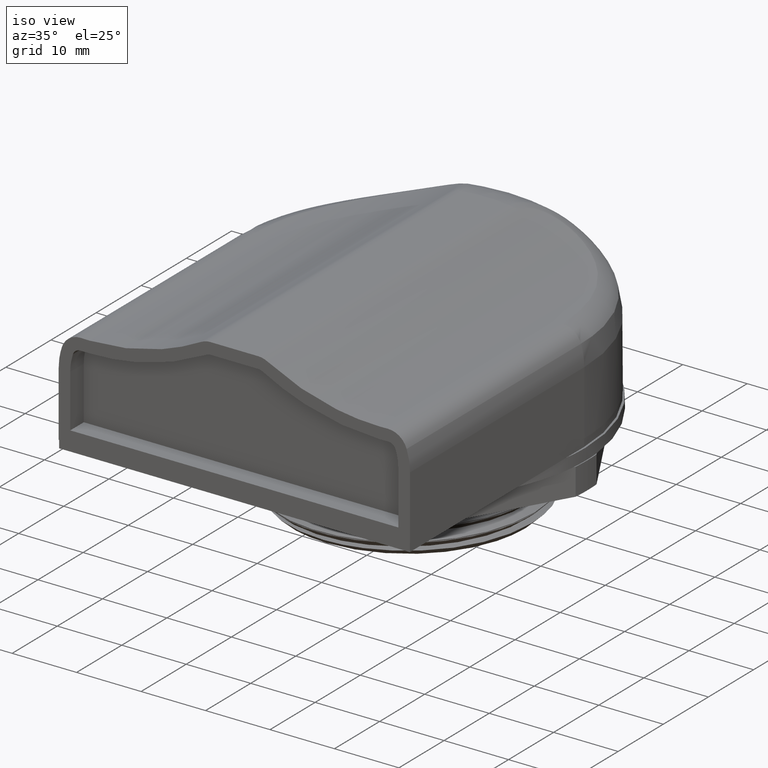
[diagram: clean part render]
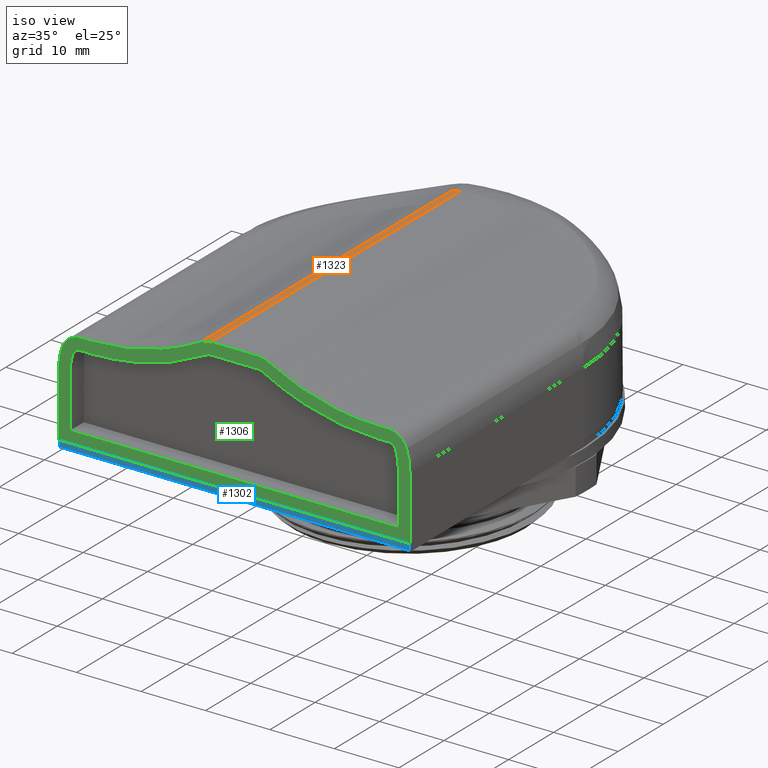
[diagram: same view with three faces highlighted in distinct colors, each labeled with its STEP entity id]
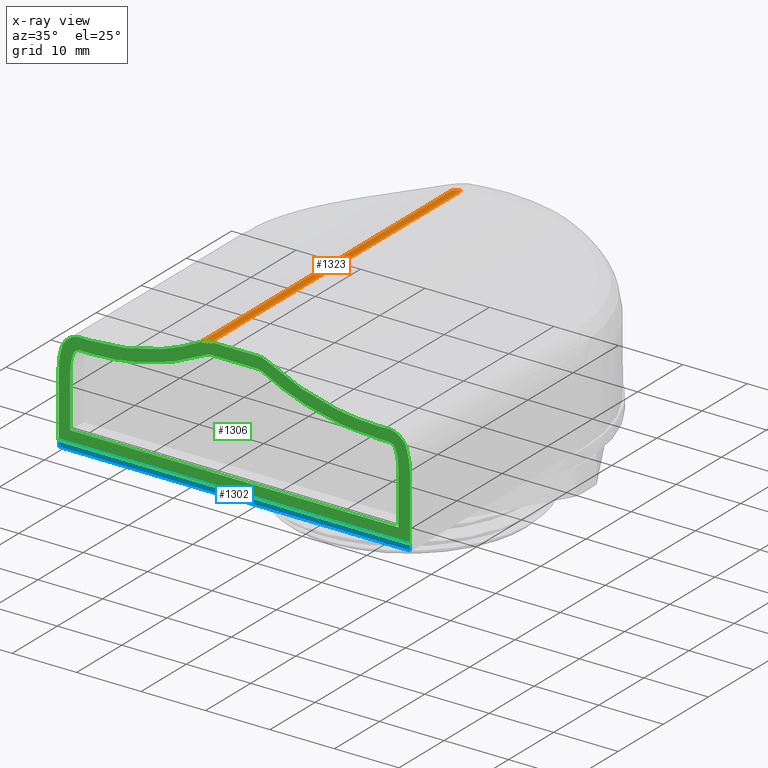
[diagram: x-ray of the same camera — body ghosted, the three highlighted faces saturated]
A machine part, iso view with three faces highlighted in distinct colors.
The next image is the same camera in x-ray (body ghosted, the three faces saturated) — at least one of them is partly hidden behind the body in this view.
Their STEP definitions:

[orange] entity #1323 — the highlighted cylindrical surface (edge-blend (fillet) strip) has radius 3 mm, axis along (-0, -1, -0).
#691 = VERTEX_POINT ( 'NONE', #3015 ) ;
#701 = VERTEX_POINT ( 'NONE', #3028 ) ;
#725 = VERTEX_POINT ( 'NONE', #3012 ) ;
#774 = VERTEX_POINT ( 'NONE', #3093 ) ;
#901 = EDGE_CURVE ( 'NONE', #691, #701, #4510, .T. ) ;
#915 = EDGE_CURVE ( 'NONE', #774, #701, #12926, .T. ) ;
#1323 = ADVANCED_FACE ( 'NONE', ( #6863 ), #6849, .T. ) ;
#1457 = EDGE_CURVE ( 'NONE', #725, #691, #16097, .T. ) ;
#1625 = EDGE_CURVE ( 'NONE', #725, #774, #9061, .T. ) ;
#3012 = CARTESIAN_POINT ( 'NONE',  ( -9.727194611496791800, 22.65582705142065500, 34.62921381726673100 ) ) ;
#3015 = CARTESIAN_POINT ( 'NONE',  ( -8.282468096514207900, 22.65582705142065800, 35.00000000000000000 ) ) ;
#3028 = CARTESIAN_POINT ( 'NONE',  ( -8.282468096514207900, -32.81970099667773200, 35.00000000000000000 ) ) ;
#3093 = CARTESIAN_POINT ( 'NONE',  ( -9.727194611496795300, -32.81970099667773200, 34.62921381726673100 ) ) ;
#4510 = LINE ( 'NONE', #4556, #5400 ) ;
#4524 = DIRECTION ( 'NONE',  ( 0.0000000000000000000, -1.000000000000000000, -0.0000000000000000000 ) ) ;
#4556 = CARTESIAN_POINT ( 'NONE',  ( -8.282468096514207900, 9.930299003322279100, 35.00000000000000000 ) ) ;
#4622 = CARTESIAN_POINT ( 'NONE',  ( -9.286843787195946800, -32.81970099667773200, 34.87118216064902000 ) ) ;
#4627 = CARTESIAN_POINT ( 'NONE',  ( -8.282468096514207900, -32.81970099667773200, 35.00000000000000000 ) ) ;
#4637 = CARTESIAN_POINT ( 'NONE',  ( -9.727194611496795300, -32.81970099667773200, 34.62921381726673100 ) ) ;
#4650 = CARTESIAN_POINT ( 'NONE',  ( -8.784919614236670800, -32.81970099667773200, 35.00000000000000000 ) ) ;
#5400 = VECTOR ( 'NONE', #4524, 1000.000000000000000 ) ;
#6822 = CARTESIAN_POINT ( 'NONE',  ( -8.282468096514207900, 37.18029900332227600, 32.00000000000000000 ) ) ;
#6828 = DIRECTION ( 'NONE',  ( -0.0000000000000000000, -1.000000000000000000, -0.0000000000000000000 ) ) ;
#6849 = CYLINDRICAL_SURFACE ( 'NONE', #15933, 2.999999999999999100 ) ;
#6853 = DIRECTION ( 'NONE',  ( 0.0000000000000000000, 0.0000000000000000000, -1.000000000000000000 ) ) ;
#6863 = FACE_OUTER_BOUND ( 'NONE', #13789, .T. ) ;
#7831 = DIRECTION ( 'NONE',  ( 0.0000000000000000000, 1.000000000000000000, 0.0000000000000000000 ) ) ;
#7833 = DIRECTION ( 'NONE',  ( 0.0000000000000000000, 0.0000000000000000000, 1.000000000000000000 ) ) ;
#7852 = CARTESIAN_POINT ( 'NONE',  ( -8.282468096514206100, 22.65582705142065800, 32.00000000000000000 ) ) ;
#9061 = LINE ( 'NONE', #9077, #15467 ) ;
#9076 = DIRECTION ( 'NONE',  ( -0.0000000000000000000, -1.000000000000000000, -0.0000000000000000000 ) ) ;
#9077 = CARTESIAN_POINT ( 'NONE',  ( -9.727194611496795300, 37.18029900332227600, 34.62921381726673100 ) ) ;
#12926 = B_SPLINE_CURVE_WITH_KNOTS ( 'NONE', 3,
 ( #4637, #4622, #4650, #4627 ),
 .UNSPECIFIED., .F., .F.,
 ( 4, 4 ),
 ( 0.0000000000000000000, 1.000000000000000000 ),
 .UNSPECIFIED. ) ;
#13789 = EDGE_LOOP ( 'NONE', ( #14153, #14144, #14172, #14157 ) ) ;
#14144 = ORIENTED_EDGE ( 'NONE', *, *, #901, .F. ) ;
#14153 = ORIENTED_EDGE ( 'NONE', *, *, #915, .T. ) ;
#14157 = ORIENTED_EDGE ( 'NONE', *, *, #1625, .T. ) ;
#14172 = ORIENTED_EDGE ( 'NONE', *, *, #1457, .F. ) ;
#15467 = VECTOR ( 'NONE', #9076, 1000.000000000000000 ) ;
#15933 = AXIS2_PLACEMENT_3D ( 'NONE', #6822, #6828, #6853 ) ;
#16090 = AXIS2_PLACEMENT_3D ( 'NONE', #7852, #7831, #7833 ) ;
#16097 = CIRCLE ( 'NONE', #16090, 3.000000000000002700 ) ;

[blue] entity #1302 — the highlighted planar face has unit normal (0, 1, 0).
#652 = VERTEX_POINT ( 'NONE', #2966 ) ;
#653 = VERTEX_POINT ( 'NONE', #2952 ) ;
#689 = VERTEX_POINT ( 'NONE', #3031 ) ;
#710 = VERTEX_POINT ( 'NONE', #2988 ) ;
#902 = EDGE_CURVE ( 'NONE', #689, #652, #12913, .T. ) ;
#907 = EDGE_CURVE ( 'NONE', #689, #653, #12897, .T. ) ;
#927 = EDGE_CURVE ( 'NONE', #710, #653, #12971, .T. ) ;
#1302 = ADVANCED_FACE ( 'NONE', ( #6698 ), #6702, .F. ) ;
#1446 = EDGE_CURVE ( 'NONE', #652, #710, #7747, .T. ) ;
#2952 = CARTESIAN_POINT ( 'NONE',  ( 22.63261302966720800, -32.77120099667774200, 13.99999999999999800 ) ) ;
#2966 = CARTESIAN_POINT ( 'NONE',  ( -31.76988697033279900, -32.77070099667773200, 15.00000000000000000 ) ) ;
#2988 = CARTESIAN_POINT ( 'NONE',  ( 22.63211302966721000, -32.77070099667773900, 15.00000000000000000 ) ) ;
#3031 = CARTESIAN_POINT ( 'NONE',  ( -31.77038697033281200, -32.77120099667773400, 13.99999999999999800 ) ) ;
#4517 = CARTESIAN_POINT ( 'NONE',  ( -31.76988697033280600, -32.77070099667773200, 14.66666666666666600 ) ) ;
#4522 = CARTESIAN_POINT ( 'NONE',  ( -31.77038697033281200, -32.77120099667773400, 13.99999999999999800 ) ) ;
#4528 = CARTESIAN_POINT ( 'NONE',  ( -31.76988697033280600, -32.77070099667773200, 14.33333333333333200 ) ) ;
#4554 = CARTESIAN_POINT ( 'NONE',  ( -31.76988697033279900, -32.77070099667773200, 15.00000000000000000 ) ) ;
#4588 = CARTESIAN_POINT ( 'NONE',  ( 22.63261302966720800, -32.77120099667774200, 13.99999999999999800 ) ) ;
#4592 = CARTESIAN_POINT ( 'NONE',  ( -31.77038697033281200, -32.77120099667773400, 13.99999999999999800 ) ) ;
#4593 = CARTESIAN_POINT ( 'NONE',  ( 4.498279696333869800, -32.77070099667773200, 13.99999999999999800 ) ) ;
#4609 = CARTESIAN_POINT ( 'NONE',  ( -13.63605363699947200, -32.77070099667773200, 13.99999999999999800 ) ) ;
#4695 = CARTESIAN_POINT ( 'NONE',  ( 22.63211302966721000, -32.77070099667773900, 15.00000000000000000 ) ) ;
#4713 = CARTESIAN_POINT ( 'NONE',  ( 22.63261302966720800, -32.77120099667774200, 13.99999999999999800 ) ) ;
#4716 = CARTESIAN_POINT ( 'NONE',  ( 22.63211302966721000, -32.77070099667773200, 14.33333333333333200 ) ) ;
#4719 = CARTESIAN_POINT ( 'NONE',  ( 22.63211302966721000, -32.77070099667773200, 14.66666666666666600 ) ) ;
#6677 = DIRECTION ( 'NONE',  ( 0.0000000000000000000, 1.000000000000000000, 0.0000000000000000000 ) ) ;
#6684 = CARTESIAN_POINT ( 'NONE',  ( 22.68111302966720900, -32.77070099667773200, 13.99999999999999800 ) ) ;
#6686 = DIRECTION ( 'NONE',  ( 0.0000000000000000000, -0.0000000000000000000, 1.000000000000000000 ) ) ;
#6698 = FACE_OUTER_BOUND ( 'NONE', #13768, .T. ) ;
#6702 = PLANE ( 'NONE',  #15924 ) ;
#7709 = DIRECTION ( 'NONE',  ( 1.000000000000000000, 0.0000000000000000000, -0.0000000000000000000 ) ) ;
#7747 = LINE ( 'NONE', #7753, #16042 ) ;
#7753 = CARTESIAN_POINT ( 'NONE',  ( 22.68111302966720900, -32.77070099667773200, 15.00000000000000000 ) ) ;
#12897 = B_SPLINE_CURVE_WITH_KNOTS ( 'NONE', 3,
 ( #4592, #4609, #4593, #4588 ),
 .UNSPECIFIED., .F., .F.,
 ( 4, 4 ),
 ( 0.0000000000000000000, 1.000000000000000000 ),
 .UNSPECIFIED. ) ;
#12913 = B_SPLINE_CURVE_WITH_KNOTS ( 'NONE', 3,
 ( #4522, #4528, #4517, #4554 ),
 .UNSPECIFIED., .F., .F.,
 ( 4, 4 ),
 ( 0.0000000000000000000, 1.000000000000000000 ),
 .UNSPECIFIED. ) ;
#12971 = B_SPLINE_CURVE_WITH_KNOTS ( 'NONE', 3,
 ( #4695, #4719, #4716, #4713 ),
 .UNSPECIFIED., .F., .F.,
 ( 4, 4 ),
 ( 0.0000000000000000000, 1.000000000000000000 ),
 .UNSPECIFIED. ) ;
#13768 = EDGE_LOOP ( 'NONE', ( #14470, #14473, #14490, #14481 ) ) ;
#14470 = ORIENTED_EDGE ( 'NONE', *, *, #902, .F. ) ;
#14473 = ORIENTED_EDGE ( 'NONE', *, *, #907, .T. ) ;
#14481 = ORIENTED_EDGE ( 'NONE', *, *, #1446, .F. ) ;
#14490 = ORIENTED_EDGE ( 'NONE', *, *, #927, .F. ) ;
#15924 = AXIS2_PLACEMENT_3D ( 'NONE', #6684, #6677, #6686 ) ;
#16042 = VECTOR ( 'NONE', #7709, 1000.000000000000000 ) ;

[green] entity #1306 — the highlighted planar face has unit normal (0, 1, 0).
#115 = B_SPLINE_CURVE_WITH_KNOTS ( 'NONE', 3,
 ( #9111, #9112, #9176, #9193 ),
 .UNSPECIFIED., .F., .F.,
 ( 4, 4 ),
 ( 0.0000000000000000000, 1.000000000000000000 ),
 .UNSPECIFIED. ) ;
#623 = VERTEX_POINT ( 'NONE', #2922 ) ;
#624 = VERTEX_POINT ( 'NONE', #2924 ) ;
#633 = VERTEX_POINT ( 'NONE', #2910 ) ;
#670 = VERTEX_POINT ( 'NONE', #2954 ) ;
#674 = VERTEX_POINT ( 'NONE', #2921 ) ;
#680 = VERTEX_POINT ( 'NONE', #2941 ) ;
#681 = VERTEX_POINT ( 'NONE', #2960 ) ;
#682 = VERTEX_POINT ( 'NONE', #2967 ) ;
#685 = VERTEX_POINT ( 'NONE', #2968 ) ;
#692 = VERTEX_POINT ( 'NONE', #2981 ) ;
#694 = VERTEX_POINT ( 'NONE', #2992 ) ;
#697 = VERTEX_POINT ( 'NONE', #2983 ) ;
#699 = VERTEX_POINT ( 'NONE', #2979 ) ;
#700 = VERTEX_POINT ( 'NONE', #3025 ) ;
#701 = VERTEX_POINT ( 'NONE', #3028 ) ;
#703 = VERTEX_POINT ( 'NONE', #2995 ) ;
#708 = VERTEX_POINT ( 'NONE', #3022 ) ;
#709 = VERTEX_POINT ( 'NONE', #3009 ) ;
#714 = VERTEX_POINT ( 'NONE', #3030 ) ;
#715 = VERTEX_POINT ( 'NONE', #2996 ) ;
#718 = VERTEX_POINT ( 'NONE', #3026 ) ;
#720 = VERTEX_POINT ( 'NONE', #2998 ) ;
#722 = VERTEX_POINT ( 'NONE', #3011 ) ;
#732 = VERTEX_POINT ( 'NONE', #3003 ) ;
#733 = VERTEX_POINT ( 'NONE', #2987 ) ;
#750 = VERTEX_POINT ( 'NONE', #3007 ) ;
#768 = VERTEX_POINT ( 'NONE', #3073 ) ;
#774 = VERTEX_POINT ( 'NONE', #3093 ) ;
#781 = VERTEX_POINT ( 'NONE', #3056 ) ;
#900 = EDGE_CURVE ( 'NONE', #701, #685, #4544, .T. ) ;
#911 = EDGE_CURVE ( 'NONE', #709, #699, #4574, .T. ) ;
#915 = EDGE_CURVE ( 'NONE', #774, #701, #12926, .T. ) ;
#916 = EDGE_CURVE ( 'NONE', #633, #750, #13085, .T. ) ;
#1306 = ADVANCED_FACE ( 'NONE', ( #6724, #6716 ), #6748, .F. ) ;
#1422 = EDGE_CURVE ( 'NONE', #694, #718, #13010, .T. ) ;
#1429 = EDGE_CURVE ( 'NONE', #685, #682, #13089, .T. ) ;
#1430 = EDGE_CURVE ( 'NONE', #700, #768, #13021, .T. ) ;
#1431 = EDGE_CURVE ( 'NONE', #720, #697, #12992, .T. ) ;
#1433 = EDGE_CURVE ( 'NONE', #623, #714, #13042, .T. ) ;
#1434 = EDGE_CURVE ( 'NONE', #732, #708, #13095, .T. ) ;
#1435 = EDGE_CURVE ( 'NONE', #720, #681, #6546, .T. ) ;
#1439 = EDGE_CURVE ( 'NONE', #680, #624, #13097, .T. ) ;
#1441 = EDGE_CURVE ( 'NONE', #623, #674, #12969, .T. ) ;
#1449 = EDGE_CURVE ( 'NONE', #694, #703, #12989, .T. ) ;
#1454 = EDGE_CURVE ( 'NONE', #633, #703, #7870, .T. ) ;
#1456 = EDGE_CURVE ( 'NONE', #674, #709, #7805, .T. ) ;
#1458 = EDGE_CURVE ( 'NONE', #699, #680, #7829, .T. ) ;
#1465 = EDGE_CURVE ( 'NONE', #733, #670, #13013, .T. ) ;
#1467 = EDGE_CURVE ( 'NONE', #700, #624, #13018, .T. ) ;
#1471 = EDGE_CURVE ( 'NONE', #722, #692, #8217, .T. ) ;
#1476 = EDGE_CURVE ( 'NONE', #722, #681, #8207, .T. ) ;
#1478 = EDGE_CURVE ( 'NONE', #708, #692, #13103, .T. ) ;
#1483 = EDGE_CURVE ( 'NONE', #715, #670, #13104, .T. ) ;
#1484 = EDGE_CURVE ( 'NONE', #682, #781, #13106, .T. ) ;
#1587 = EDGE_CURVE ( 'NONE', #732, #781, #13148, .T. ) ;
#1590 = EDGE_CURVE ( 'NONE', #733, #774, #13253, .T. ) ;
#1598 = EDGE_CURVE ( 'NONE', #768, #750, #13229, .T. ) ;
#1619 = EDGE_CURVE ( 'NONE', #697, #715, #13123, .T. ) ;
#1637 = EDGE_CURVE ( 'NONE', #718, #714, #115, .T. ) ;
#2910 = CARTESIAN_POINT ( 'NONE',  ( -0.8553058441513883300, -32.81970099667773200, 33.20000000000001000 ) ) ;
#2921 = CARTESIAN_POINT ( 'NONE',  ( -30.01888697033280100, -32.81970099667773200, 25.00000000000000000 ) ) ;
#2922 = CARTESIAN_POINT ( 'NONE',  ( -29.60015785310536900, -32.81970099667773200, 27.58685590029981000 ) ) ;
#2924 = CARTESIAN_POINT ( 'NONE',  ( 20.46238391243976900, -32.81970099667773200, 27.58685590029981000 ) ) ;
#2941 = CARTESIAN_POINT ( 'NONE',  ( 20.88111302966720800, -32.81970099667773200, 25.00000000000000000 ) ) ;
#2954 = CARTESIAN_POINT ( 'NONE',  ( -28.35295904820536000, -32.81970099667773200, 30.20632979842735500 ) ) ;
#2960 = CARTESIAN_POINT ( 'NONE',  ( -31.81888697033280500, -32.81970099667773200, 15.00000000000000000 ) ) ;
#2967 = CARTESIAN_POINT ( 'NONE',  ( 0.5894206708311993100, -32.81970099667773200, 34.62921381726673100 ) ) ;
#2968 = CARTESIAN_POINT ( 'NONE',  ( -0.8553058441513882200, -32.81970099667773200, 35.00000000000000000 ) ) ;
#2979 = CARTESIAN_POINT ( 'NONE',  ( 20.88111302966720800, -32.81970099667773200, 16.80000000000000100 ) ) ;
#2981 = CARTESIAN_POINT ( 'NONE',  ( 22.68111302966720900, -32.81970099667773200, 25.00000000000000000 ) ) ;
#2983 = CARTESIAN_POINT ( 'NONE',  ( -31.30824170542129200, -32.81970099667773200, 28.15470231743880100 ) ) ;
#2987 = CARTESIAN_POINT ( 'NONE',  ( -27.05212898633338600, -32.81970099667773200, 30.18280391454023000 ) ) ;
#2992 = CARTESIAN_POINT ( 'NONE',  ( -8.860358702507252100, -32.81970099667773200, 33.05168552690668800 ) ) ;
#2995 = CARTESIAN_POINT ( 'NONE',  ( -8.282468096514207900, -32.81970099667773200, 33.20000000000001000 ) ) ;
#2996 = CARTESIAN_POINT ( 'NONE',  ( -28.46143528489474800, -32.81970099667773200, 30.20829162220716300 ) ) ;
#2998 = CARTESIAN_POINT ( 'NONE',  ( -31.81888697033280500, -32.81970099667773200, 25.00000000000000000 ) ) ;
#3003 = CARTESIAN_POINT ( 'NONE',  ( 19.21518510753976400, -32.81970099667773200, 30.20632979842734800 ) ) ;
#3007 = CARTESIAN_POINT ( 'NONE',  ( -0.2774152381583746600, -32.81970099667773200, 33.05168552690670200 ) ) ;
#3009 = CARTESIAN_POINT ( 'NONE',  ( -30.01888697033279700, -32.81970099667773200, 16.80000000000000100 ) ) ;
#3011 = CARTESIAN_POINT ( 'NONE',  ( 22.68111302966720500, -32.81970099667773200, 15.00000000000000000 ) ) ;
#3022 = CARTESIAN_POINT ( 'NONE',  ( 22.17046776475569600, -32.81970099667773200, 28.15470231743879400 ) ) ;
#3025 = CARTESIAN_POINT ( 'NONE',  ( 19.28027084955339300, -32.81970099667773200, 28.40750689269522800 ) ) ;
#3026 = CARTESIAN_POINT ( 'NONE',  ( -27.05212898633338600, -32.81970099667773200, 28.38280391454022600 ) ) ;
#3028 = CARTESIAN_POINT ( 'NONE',  ( -8.282468096514207900, -32.81970099667773200, 35.00000000000000000 ) ) ;
#3030 = CARTESIAN_POINT ( 'NONE',  ( -28.41804479021898900, -32.81970099667773200, 28.40750689269523100 ) ) ;
#3056 = CARTESIAN_POINT ( 'NONE',  ( 17.91435504566777900, -32.81970099667773200, 30.18280391454023000 ) ) ;
#3073 = CARTESIAN_POINT ( 'NONE',  ( 17.91435504566777900, -32.81970099667773200, 28.38280391454022200 ) ) ;
#3093 = CARTESIAN_POINT ( 'NONE',  ( -9.727194611496795300, -32.81970099667773200, 34.62921381726673100 ) ) ;
#4520 = DIRECTION ( 'NONE',  ( 1.000000000000000000, 0.0000000000000000000, -0.0000000000000000000 ) ) ;
#4544 = LINE ( 'NONE', #4558, #5407 ) ;
#4558 = CARTESIAN_POINT ( 'NONE',  ( 22.68111302966720900, -32.81970099667773200, 35.00000000000000000 ) ) ;
#4574 = LINE ( 'NONE', #4590, #5551 ) ;
#4587 = DIRECTION ( 'NONE',  ( 1.000000000000000000, 0.0000000000000000000, -0.0000000000000000000 ) ) ;
#4590 = CARTESIAN_POINT ( 'NONE',  ( 22.68111302966720900, -32.81970099667773200, 16.80000000000000100 ) ) ;
#4620 = CARTESIAN_POINT ( 'NONE',  ( -0.2774152381583746600, -32.81970099667773200, 33.05168552690670200 ) ) ;
#4622 = CARTESIAN_POINT ( 'NONE',  ( -9.286843787195946800, -32.81970099667773200, 34.87118216064902000 ) ) ;
#4625 = CARTESIAN_POINT ( 'NONE',  ( -0.8553058441513883300, -32.81970099667773200, 33.20000000000001000 ) ) ;
#4627 = CARTESIAN_POINT ( 'NONE',  ( -8.282468096514207900, -32.81970099667773200, 35.00000000000000000 ) ) ;
#4634 = CARTESIAN_POINT ( 'NONE',  ( -0.6501366892340427700, -32.81970099667773200, 33.19941845723758400 ) ) ;
#4637 = CARTESIAN_POINT ( 'NONE',  ( -9.727194611496795300, -32.81970099667773200, 34.62921381726673100 ) ) ;
#4650 = CARTESIAN_POINT ( 'NONE',  ( -8.784919614236670800, -32.81970099667773200, 35.00000000000000000 ) ) ;
#4662 = CARTESIAN_POINT ( 'NONE',  ( -0.4575064872363692200, -32.81970099667773200, 33.14998029953982000 ) ) ;
#5407 = VECTOR ( 'NONE', #4520, 1000.000000000000000 ) ;
#5551 = VECTOR ( 'NONE', #4587, 1000.000000000000000 ) ;
#6546 = LINE ( 'NONE', #6825, #16053 ) ;
#6631 = CARTESIAN_POINT ( 'NONE',  ( 19.85959777921250700, -32.81970099667773900, 30.17748951471787700 ) ) ;
#6683 = CARTESIAN_POINT ( 'NONE',  ( 20.47660461548452600, -32.81970099667772400, 29.99649638522218000 ) ) ;
#6709 = DIRECTION ( 'NONE',  ( 0.0000000000000000000, -0.0000000000000000000, 1.000000000000000000 ) ) ;
#6714 = CARTESIAN_POINT ( 'NONE',  ( 21.53291087843460600, -32.81970099667773200, 29.26318346433553300 ) ) ;
#6716 = FACE_BOUND ( 'NONE', #13796, .T. ) ;
#6724 = FACE_OUTER_BOUND ( 'NONE', #13798, .T. ) ;
#6731 = DIRECTION ( 'NONE',  ( 0.0000000000000000000, 1.000000000000000000, 0.0000000000000000000 ) ) ;
#6737 = CARTESIAN_POINT ( 'NONE',  ( 20.77038190805591400, -32.81970099667773200, 29.85600074471921400 ) ) ;
#6741 = CARTESIAN_POINT ( 'NONE',  ( 21.29858183645445600, -32.81970099667773900, 29.48931179673901300 ) ) ;
#6748 = PLANE ( 'NONE',  #15937 ) ;
#6755 = CARTESIAN_POINT ( 'NONE',  ( 22.68111302966720900, -32.81970099667773200, 35.00000000000000000 ) ) ;
#6765 = CARTESIAN_POINT ( 'NONE',  ( 21.91817570997572800, -32.81970099667773900, 28.74837577353376600 ) ) ;
#6771 = CARTESIAN_POINT ( 'NONE',  ( 22.06904323292823700, -32.81970099667773200, 28.45978763595862700 ) ) ;
#6772 = CARTESIAN_POINT ( 'NONE',  ( 22.17046776475569600, -32.81970099667773200, 28.15470231743879400 ) ) ;
#6825 = CARTESIAN_POINT ( 'NONE',  ( -31.81888697033280500, -32.81970099667773200, 35.00000000000000000 ) ) ;
#7457 = DIRECTION ( 'NONE',  ( 0.0000000000000000000, -0.0000000000000000000, -1.000000000000000000 ) ) ;
#7473 = CARTESIAN_POINT ( 'NONE',  ( 0.5894206708311993100, -32.81970099667773200, 34.62921381726673100 ) ) ;
#7475 = CARTESIAN_POINT ( 'NONE',  ( 17.91435504566777900, -32.81970099667773200, 28.38280391454022200 ) ) ;
#7476 = CARTESIAN_POINT ( 'NONE',  ( -0.8553058441513882200, -32.81970099667773200, 35.00000000000000000 ) ) ;
#7478 = CARTESIAN_POINT ( 'NONE',  ( -31.81888697033280500, -32.81970099667773200, 25.00000000000000000 ) ) ;
#7489 = CARTESIAN_POINT ( 'NONE',  ( -0.3528543264289253400, -32.81970099667773200, 35.00000000000000000 ) ) ;
#7491 = CARTESIAN_POINT ( 'NONE',  ( -31.81888697033280500, -32.81970099667773200, 26.06984049772509600 ) ) ;
#7492 = CARTESIAN_POINT ( 'NONE',  ( -31.30824170542129200, -32.81970099667773200, 28.15470231743880100 ) ) ;
#7494 = CARTESIAN_POINT ( 'NONE',  ( -14.59736440577929200, -32.81970099667773900, 30.35502988138046700 ) ) ;
#7498 = CARTESIAN_POINT ( 'NONE',  ( -31.64574453516761600, -32.81970099667773200, 27.13949271815109300 ) ) ;
#7500 = CARTESIAN_POINT ( 'NONE',  ( 18.36975958723130700, -32.81970099667773200, 28.38280391454021900 ) ) ;
#7502 = CARTESIAN_POINT ( 'NONE',  ( 19.28027084955339300, -32.81970099667773200, 28.40750689269522800 ) ) ;
#7503 = CARTESIAN_POINT ( 'NONE',  ( -8.860358702507252100, -32.81970099667773200, 33.05168552690668800 ) ) ;
#7504 = CARTESIAN_POINT ( 'NONE',  ( -29.60015785310536900, -32.81970099667773200, 27.58685590029981000 ) ) ;
#7506 = CARTESIAN_POINT ( 'NONE',  ( -27.05212898633338600, -32.81970099667773200, 28.38280391454022600 ) ) ;
#7510 = CARTESIAN_POINT ( 'NONE',  ( -23.88873352900109000, -32.81970099667773200, 28.38280391454022600 ) ) ;
#7511 = CARTESIAN_POINT ( 'NONE',  ( -11.63277305113953400, -32.81970099667773200, 31.52827176204554900 ) ) ;
#7514 = CARTESIAN_POINT ( 'NONE',  ( -20.72554746045002400, -32.81970099667772400, 28.78224390537207700 ) ) ;
#7519 = CARTESIAN_POINT ( 'NONE',  ( 0.1490698465303519900, -32.81970099667773200, 34.87118216064902000 ) ) ;
#7520 = CARTESIAN_POINT ( 'NONE',  ( 18.82516411580955300, -32.81970099667773200, 28.39104003574853200 ) ) ;
#7521 = CARTESIAN_POINT ( 'NONE',  ( -29.58011458224433500, -32.81970099667772400, 27.64697194422445400 ) ) ;
#7591 = CARTESIAN_POINT ( 'NONE',  ( -29.46445653566457100, -32.81970099667774600, 27.86785374726960300 ) ) ;
#7593 = CARTESIAN_POINT ( 'NONE',  ( 19.53647756540824800, -32.81970099667773200, 30.21795493281780100 ) ) ;
#7594 = CARTESIAN_POINT ( 'NONE',  ( -29.54359786447358300, -32.81970099667773200, 27.73358557871988900 ) ) ;
#7598 = CARTESIAN_POINT ( 'NONE',  ( -28.81969370356488000, -32.81970099667773900, 28.35401253610671500 ) ) ;
#7602 = CARTESIAN_POINT ( 'NONE',  ( -28.66812875392769300, -32.81970099667773200, 28.39700175811658100 ) ) ;
#7605 = CARTESIAN_POINT ( 'NONE',  ( -28.54435011278820200, -32.81970099667773200, 28.41196726217877000 ) ) ;
#7606 = CARTESIAN_POINT ( 'NONE',  ( -28.41804479021898900, -32.81970099667773200, 28.40750689269523100 ) ) ;
#7614 = CARTESIAN_POINT ( 'NONE',  ( -29.25552225537971300, -32.81970099667774600, 28.11791262591867000 ) ) ;
#7615 = CARTESIAN_POINT ( 'NONE',  ( -29.09088411646788700, -32.81970099667774600, 28.23209990946458000 ) ) ;
#7621 = CARTESIAN_POINT ( 'NONE',  ( 19.21518510753976400, -32.81970099667773200, 30.20632979842734800 ) ) ;
#7624 = CARTESIAN_POINT ( 'NONE',  ( -29.44807483861222200, -32.81970099667773200, 27.89217186569116100 ) ) ;
#7626 = CARTESIAN_POINT ( 'NONE',  ( -29.00517673393146700, -32.81970099667773200, 28.28171834271263700 ) ) ;
#7636 = CARTESIAN_POINT ( 'NONE',  ( -29.49740342948401000, -32.81970099667773200, 27.81485856612802400 ) ) ;
#7637 = CARTESIAN_POINT ( 'NONE',  ( -29.34911932607866800, -32.81970099667773900, 28.02665610081234200 ) ) ;
#7641 = CARTESIAN_POINT ( 'NONE',  ( -28.91438688177428400, -32.81970099667773200, 28.32012396317339800 ) ) ;
#7644 = CARTESIAN_POINT ( 'NONE',  ( -28.85273087597599700, -32.81970099667773200, 28.34323597397225900 ) ) ;
#7713 = CARTESIAN_POINT ( 'NONE',  ( 20.88111302966720800, -32.81970099667773200, 25.87726920813458200 ) ) ;
#7719 = CARTESIAN_POINT ( 'NONE',  ( 20.73913623283175400, -32.81970099667773200, 26.75438402888389400 ) ) ;
#7725 = CARTESIAN_POINT ( 'NONE',  ( -30.01888697033280100, -32.81970099667773200, 25.00000000000000000 ) ) ;
#7728 = CARTESIAN_POINT ( 'NONE',  ( -29.87691017349735000, -32.81970099667773200, 26.75438402888389800 ) ) ;
#7730 = CARTESIAN_POINT ( 'NONE',  ( -8.487637251431561200, -32.81970099667773200, 33.19941845723758400 ) ) ;
#7733 = CARTESIAN_POINT ( 'NONE',  ( -29.60015785310536900, -32.81970099667773200, 27.58685590029981000 ) ) ;
#7737 = CARTESIAN_POINT ( 'NONE',  ( 20.88111302966720800, -32.81970099667773200, 25.00000000000000000 ) ) ;
#7740 = CARTESIAN_POINT ( 'NONE',  ( 20.46238391243976900, -32.81970099667773200, 27.58685590029981000 ) ) ;
#7742 = CARTESIAN_POINT ( 'NONE',  ( -8.860358702507252100, -32.81970099667773200, 33.05168552690668800 ) ) ;
#7743 = CARTESIAN_POINT ( 'NONE',  ( -30.01888697033280500, -32.81970099667773200, 25.87726920813458200 ) ) ;
#7745 = CARTESIAN_POINT ( 'NONE',  ( -8.680267453429241400, -32.81970099667773200, 33.14998029953981300 ) ) ;
#7748 = CARTESIAN_POINT ( 'NONE',  ( -8.282468096514207900, -32.81970099667773200, 33.20000000000001000 ) ) ;
#7805 = LINE ( 'NONE', #7811, #16098 ) ;
#7811 = CARTESIAN_POINT ( 'NONE',  ( -30.01888697033280100, -32.81970099667773200, 35.00000000000000000 ) ) ;
#7827 = DIRECTION ( 'NONE',  ( -1.000000000000000000, -0.0000000000000000000, 0.0000000000000000000 ) ) ;
#7829 = LINE ( 'NONE', #7839, #16099 ) ;
#7839 = CARTESIAN_POINT ( 'NONE',  ( 20.88111302966720800, -32.81970099667773200, 35.00000000000000000 ) ) ;
#7841 = DIRECTION ( 'NONE',  ( 0.0000000000000000000, -0.0000000000000000000, 1.000000000000000000 ) ) ;
#7851 = DIRECTION ( 'NONE',  ( -0.0000000000000000000, 0.0000000000000000000, -1.000000000000000000 ) ) ;
#7865 = CARTESIAN_POINT ( 'NONE',  ( 22.68111302966720900, -32.81970099667773200, 33.20000000000001000 ) ) ;
#7870 = LINE ( 'NONE', #7865, #16079 ) ;
#7922 = CARTESIAN_POINT ( 'NONE',  ( -27.05212898633338600, -32.81970099667773200, 30.18280391454023000 ) ) ;
#7973 = CARTESIAN_POINT ( 'NONE',  ( -27.48588059125365700, -32.81970099667773200, 30.18281717490949100 ) ) ;
#8011 = CARTESIAN_POINT ( 'NONE',  ( 19.28027084955339300, -32.81970099667773200, 28.40750689269522800 ) ) ;
#8012 = CARTESIAN_POINT ( 'NONE',  ( -27.91949061187765600, -32.81970099667773200, 30.19065913620520200 ) ) ;
#8019 = CARTESIAN_POINT ( 'NONE',  ( 19.34360069852820600, -32.81970099667773200, 28.40974333467580900 ) ) ;
#8027 = CARTESIAN_POINT ( 'NONE',  ( -28.35295904820536000, -32.81970099667773200, 30.20632979842735500 ) ) ;
#8055 = CARTESIAN_POINT ( 'NONE',  ( 20.27185770562823900, -32.81970099667772400, 27.94446359078759200 ) ) ;
#8064 = CARTESIAN_POINT ( 'NONE',  ( 19.43751507568661600, -32.81970099667772400, 28.40580860213790300 ) ) ;
#8065 = CARTESIAN_POINT ( 'NONE',  ( 20.46238391243976900, -32.81970099667773200, 27.58685590029981000 ) ) ;
#8068 = CARTESIAN_POINT ( 'NONE',  ( 20.06283507313811400, -32.81970099667773900, 28.15592627708042200 ) ) ;
#8070 = CARTESIAN_POINT ( 'NONE',  ( 20.42240952701987000, -32.81970099667772400, 27.70675159628802600 ) ) ;
#8076 = CARTESIAN_POINT ( 'NONE',  ( 19.61948840465708700, -32.81970099667773200, 28.37175032225022900 ) ) ;
#8079 = CARTESIAN_POINT ( 'NONE',  ( 19.78008024623089900, -32.81970099667773900, 28.32605061354249500 ) ) ;
#8084 = CARTESIAN_POINT ( 'NONE',  ( 20.25021204842603600, -32.81970099667772400, 27.97164914902822400 ) ) ;
#8089 = CARTESIAN_POINT ( 'NONE',  ( 19.52980885838933700, -32.81970099667773200, 28.39093977633690000 ) ) ;
#8091 = CARTESIAN_POINT ( 'NONE',  ( 20.36511815468658400, -32.81970099667772400, 27.81748920042654700 ) ) ;
#8096 = CARTESIAN_POINT ( 'NONE',  ( 19.89829852004247000, -32.81970099667773900, 28.27025989068698700 ) ) ;
#8104 = CARTESIAN_POINT ( 'NONE',  ( 20.13928424141206700, -32.81970099667773900, 28.09297177756621300 ) ) ;
#8108 = CARTESIAN_POINT ( 'NONE',  ( 20.20700474727522100, -32.81970099667773200, 28.02133573898560900 ) ) ;
#8110 = CARTESIAN_POINT ( 'NONE',  ( 19.59097791475653200, -32.81970099667773200, 28.37859742729997900 ) ) ;
#8182 = CARTESIAN_POINT ( 'NONE',  ( 22.68111302966720900, -32.81970099667773200, 25.00000000000000000 ) ) ;
#8188 = CARTESIAN_POINT ( 'NONE',  ( -28.46143528489474800, -32.81970099667773200, 30.20829162220716300 ) ) ;
#8191 = CARTESIAN_POINT ( 'NONE',  ( -28.42526865537077900, -32.81970099667773200, 30.20829162220716000 ) ) ;
#8192 = CARTESIAN_POINT ( 'NONE',  ( -28.38910202687805300, -32.81970099667773200, 30.20763753838218300 ) ) ;
#8193 = CARTESIAN_POINT ( 'NONE',  ( 22.68111302966720500, -32.81970099667773200, 26.06984049772509600 ) ) ;
#8195 = DIRECTION ( 'NONE',  ( -1.000000000000000000, 0.0000000000000000000, -0.0000000000000000000 ) ) ;
#8200 = CARTESIAN_POINT ( 'NONE',  ( 0.5894206708311993100, -32.81970099667773200, 34.62921381726673100 ) ) ;
#8204 = DIRECTION ( 'NONE',  ( 0.0000000000000000000, 0.0000000000000000000, 1.000000000000000000 ) ) ;
#8207 = LINE ( 'NONE', #8215, #16106 ) ;
#8210 = CARTESIAN_POINT ( 'NONE',  ( 3.229729772173227900, -32.81970099667773900, 33.17839055542028600 ) ) ;
#8212 = CARTESIAN_POINT ( 'NONE',  ( 22.68111302966720900, -32.81970099667773200, 35.00000000000000000 ) ) ;
#8215 = CARTESIAN_POINT ( 'NONE',  ( -4.568886970332791000, -32.81970099667773200, 15.00000000000000000 ) ) ;
#8217 = LINE ( 'NONE', #8212, #16107 ) ;
#8220 = CARTESIAN_POINT ( 'NONE',  ( 22.17046776475569600, -32.81970099667773200, 28.15470231743879400 ) ) ;
#8221 = CARTESIAN_POINT ( 'NONE',  ( 22.50797059450201600, -32.81970099667773200, 27.13949271815109300 ) ) ;
#8258 = CARTESIAN_POINT ( 'NONE',  ( 6.053058665733718900, -32.81970099667773900, 32.06105352492776500 ) ) ;
#8268 = CARTESIAN_POINT ( 'NONE',  ( 14.90169504365222200, -32.81970099667772400, 30.18280391454023000 ) ) ;
#8272 = CARTESIAN_POINT ( 'NONE',  ( 11.88923445306483900, -32.81970099667773200, 30.56321063251643400 ) ) ;
#8273 = CARTESIAN_POINT ( 'NONE',  ( 17.91435504566777900, -32.81970099667773200, 30.18280391454023000 ) ) ;
#8274 = CARTESIAN_POINT ( 'NONE',  ( -28.35295904820536000, -32.81970099667773200, 30.20632979842735500 ) ) ;
#8578 = CARTESIAN_POINT ( 'NONE',  ( -21.02700839373045800, -32.81970099667773200, 30.56321063251642300 ) ) ;
#8579 = CARTESIAN_POINT ( 'NONE',  ( -9.727194611496795300, -32.81970099667773200, 34.62921381726673100 ) ) ;
#8589 = CARTESIAN_POINT ( 'NONE',  ( 18.78171667121215900, -32.81970099667773200, 30.19065913620520200 ) ) ;
#8594 = CARTESIAN_POINT ( 'NONE',  ( 18.34810665058816800, -32.81970099667773200, 30.18281717490949100 ) ) ;
#8596 = CARTESIAN_POINT ( 'NONE',  ( 17.91435504566777900, -32.81970099667773200, 30.18280391454023000 ) ) ;
#8597 = CARTESIAN_POINT ( 'NONE',  ( -24.03946898431782500, -32.81970099667773200, 30.18280391454022600 ) ) ;
#8600 = CARTESIAN_POINT ( 'NONE',  ( -12.36750371283883100, -32.81970099667773900, 33.17839055542028600 ) ) ;
#8606 = CARTESIAN_POINT ( 'NONE',  ( -27.05212898633338600, -32.81970099667773200, 30.18280391454023000 ) ) ;
#8610 = CARTESIAN_POINT ( 'NONE',  ( 19.21518510753976400, -32.81970099667773200, 30.20632979842734800 ) ) ;
#8617 = CARTESIAN_POINT ( 'NONE',  ( -15.19083260639932200, -32.81970099667771700, 32.06105352492775000 ) ) ;
#8701 = CARTESIAN_POINT ( 'NONE',  ( 11.58777351978440400, -32.81970099667773900, 28.78224390537207700 ) ) ;
#8710 = CARTESIAN_POINT ( 'NONE',  ( 5.459590465113660900, -32.81970099667772400, 30.35502988138046400 ) ) ;
#8711 = CARTESIAN_POINT ( 'NONE',  ( 2.494999110473900700, -32.81970099667773200, 31.52827176204556300 ) ) ;
#8726 = CARTESIAN_POINT ( 'NONE',  ( 17.91435504566777900, -32.81970099667773200, 28.38280391454022200 ) ) ;
#8730 = CARTESIAN_POINT ( 'NONE',  ( 14.75095958833547800, -32.81970099667773200, 28.38280391454021500 ) ) ;
#8731 = CARTESIAN_POINT ( 'NONE',  ( -0.2774152381583746600, -32.81970099667773200, 33.05168552690670200 ) ) ;
#8991 = CARTESIAN_POINT ( 'NONE',  ( -30.69452564019952200, -32.81970099667772400, 29.23583678059282300 ) ) ;
#8992 = CARTESIAN_POINT ( 'NONE',  ( -29.08630796436000000, -32.81970099667773900, 30.15908237024509800 ) ) ;
#8993 = CARTESIAN_POINT ( 'NONE',  ( -28.77389632926408700, -32.81970099667773200, 30.20829162220716000 ) ) ;
#8998 = CARTESIAN_POINT ( 'NONE',  ( -31.06441657160833700, -32.81970099667773900, 28.73214211528949500 ) ) ;
#8999 = CARTESIAN_POINT ( 'NONE',  ( -29.96312892266880500, -32.81970099667773900, 29.82411809246800200 ) ) ;
#9003 = CARTESIAN_POINT ( 'NONE',  ( -31.30824170542129200, -32.81970099667773200, 28.15470231743880100 ) ) ;
#9011 = CARTESIAN_POINT ( 'NONE',  ( -30.46994617515181500, -32.81970099667773200, 29.45851736820847600 ) ) ;
#9013 = CARTESIAN_POINT ( 'NONE',  ( -29.68097127793500400, -32.81970099667773200, 29.96698041689345300 ) ) ;
#9016 = CARTESIAN_POINT ( 'NONE',  ( -31.20966954734315700, -32.81970099667773200, 28.45120768653049500 ) ) ;
#9019 = CARTESIAN_POINT ( 'NONE',  ( -28.46143528489474800, -32.81970099667773200, 30.20829162220716300 ) ) ;
#9111 = CARTESIAN_POINT ( 'NONE',  ( -27.05212898633338600, -32.81970099667773200, 28.38280391454022600 ) ) ;
#9112 = CARTESIAN_POINT ( 'NONE',  ( -27.50753352789691800, -32.81970099667773200, 28.38280391454022600 ) ) ;
#9176 = CARTESIAN_POINT ( 'NONE',  ( -27.96293805647516400, -32.81970099667773200, 28.39104003574854600 ) ) ;
#9193 = CARTESIAN_POINT ( 'NONE',  ( -28.41804479021898900, -32.81970099667773200, 28.40750689269523100 ) ) ;
#12926 = B_SPLINE_CURVE_WITH_KNOTS ( 'NONE', 3,
 ( #4637, #4622, #4650, #4627 ),
 .UNSPECIFIED., .F., .F.,
 ( 4, 4 ),
 ( 0.0000000000000000000, 1.000000000000000000 ),
 .UNSPECIFIED. ) ;
#12969 = B_SPLINE_CURVE_WITH_KNOTS ( 'NONE', 3,
 ( #7733, #7728, #7743, #7725 ),
 .UNSPECIFIED., .F., .F.,
 ( 4, 4 ),
 ( 0.0000000000000000000, 1.000000000000000000 ),
 .UNSPECIFIED. ) ;
#12989 = B_SPLINE_CURVE_WITH_KNOTS ( 'NONE', 3,
 ( #7742, #7745, #7730, #7748 ),
 .UNSPECIFIED., .F., .F.,
 ( 4, 4 ),
 ( 0.0000000000000000000, 1.000000000000000000 ),
 .UNSPECIFIED. ) ;
#12992 = B_SPLINE_CURVE_WITH_KNOTS ( 'NONE', 3,
 ( #7478, #7491, #7498, #7492 ),
 .UNSPECIFIED., .F., .F.,
 ( 4, 4 ),
 ( 0.0000000000000000000, 1.000000000000000000 ),
 .UNSPECIFIED. ) ;
#13010 = B_SPLINE_CURVE_WITH_KNOTS ( 'NONE', 3,
 ( #7503, #7511, #7494, #7514, #7510, #7506 ),
 .UNSPECIFIED., .F., .F.,
 ( 4, 2, 4 ),
 ( 0.0000000000000000000, 0.5000000000000000000, 1.000000000000000000 ),
 .UNSPECIFIED. ) ;
#13013 = B_SPLINE_CURVE_WITH_KNOTS ( 'NONE', 3,
 ( #7922, #7973, #8012, #8027 ),
 .UNSPECIFIED., .F., .F.,
 ( 4, 4 ),
 ( 0.0000000000000000000, 1.000000000000000000 ),
 .UNSPECIFIED. ) ;
#13018 = B_SPLINE_CURVE_WITH_KNOTS ( 'NONE', 3,
 ( #8011, #8019, #8064, #8089, #8110, #8076, #8079, #8096, #8068, #8104, #8108, #8084, #8055, #8091, #8070, #8065 ),
 .UNSPECIFIED., .F., .F.,
 ( 4, 1, 2, 2, 2, 1, 2, 2, 4 ),
 ( 0.0000000000000000000, 0.1249999999999921500, 0.1874999999999912600, 0.2499999999999904000, 0.4999999999999930100, 0.6249999999999915600, 0.6874999999999909000, 0.7499999999999901200, 1.000000000000000000 ),
 .UNSPECIFIED. ) ;
#13021 = B_SPLINE_CURVE_WITH_KNOTS ( 'NONE', 3,
 ( #7502, #7520, #7500, #7475 ),
 .UNSPECIFIED., .F., .F.,
 ( 4, 4 ),
 ( 0.0000000000000000000, 1.000000000000000000 ),
 .UNSPECIFIED. ) ;
#13042 = B_SPLINE_CURVE_WITH_KNOTS ( 'NONE', 3,
 ( #7504, #7521, #7594, #7636, #7591, #7624, #7637, #7614, #7615, #7626, #7641, #7644, #7598, #7602, #7605, #7606 ),
 .UNSPECIFIED., .F., .F.,
 ( 4, 1, 2, 2, 2, 1, 2, 2, 4 ),
 ( 0.0000000000000000000, 0.1250000000000030000, 0.1875000000000045000, 0.2500000000000060000, 0.5000000000000053300, 0.6250000000000068800, 0.6875000000000045500, 0.7500000000000023300, 1.000000000000000000 ),
 .UNSPECIFIED. ) ;
#13085 = B_SPLINE_CURVE_WITH_KNOTS ( 'NONE', 3,
 ( #4625, #4634, #4662, #4620 ),
 .UNSPECIFIED., .F., .F.,
 ( 4, 4 ),
 ( 0.0000000000000000000, 1.000000000000000000 ),
 .UNSPECIFIED. ) ;
#13089 = B_SPLINE_CURVE_WITH_KNOTS ( 'NONE', 3,
 ( #7476, #7489, #7519, #7473 ),
 .UNSPECIFIED., .F., .F.,
 ( 4, 4 ),
 ( 0.0000000000000000000, 1.000000000000000000 ),
 .UNSPECIFIED. ) ;
#13095 = B_SPLINE_CURVE_WITH_KNOTS ( 'NONE', 3,
 ( #7621, #7593, #6631, #6683, #6737, #6741, #6714, #6765, #6771, #6772 ),
 .UNSPECIFIED., .F., .F.,
 ( 4, 2, 2, 2, 4 ),
 ( 0.0000000000000000000, 0.2500000000000000000, 0.5000000000000000000, 0.7500000000000000000, 1.000000000000000000 ),
 .UNSPECIFIED. ) ;
#13097 = B_SPLINE_CURVE_WITH_KNOTS ( 'NONE', 3,
 ( #7737, #7713, #7719, #7740 ),
 .UNSPECIFIED., .F., .F.,
 ( 4, 4 ),
 ( 0.0000000000000000000, 1.000000000000000000 ),
 .UNSPECIFIED. ) ;
#13103 = B_SPLINE_CURVE_WITH_KNOTS ( 'NONE', 3,
 ( #8220, #8221, #8193, #8182 ),
 .UNSPECIFIED., .F., .F.,
 ( 4, 4 ),
 ( 0.0000000000000000000, 1.000000000000000000 ),
 .UNSPECIFIED. ) ;
#13104 = B_SPLINE_CURVE_WITH_KNOTS ( 'NONE', 3,
 ( #8188, #8191, #8192, #8274 ),
 .UNSPECIFIED., .F., .F.,
 ( 4, 4 ),
 ( 0.0000000000000000000, 1.000000000000000000 ),
 .UNSPECIFIED. ) ;
#13106 = B_SPLINE_CURVE_WITH_KNOTS ( 'NONE', 3,
 ( #8200, #8210, #8258, #8272, #8268, #8273 ),
 .UNSPECIFIED., .F., .F.,
 ( 4, 2, 4 ),
 ( 0.0000000000000000000, 0.5000000000000001100, 1.000000000000000000 ),
 .UNSPECIFIED. ) ;
#13123 = B_SPLINE_CURVE_WITH_KNOTS ( 'NONE', 3,
 ( #9003, #9016, #8998, #8991, #9011, #8999, #9013, #8992, #8993, #9019 ),
 .UNSPECIFIED., .F., .F.,
 ( 4, 2, 2, 2, 4 ),
 ( 0.0000000000000000000, 0.2500000000000000000, 0.5000000000000000000, 0.7500000000000000000, 1.000000000000000000 ),
 .UNSPECIFIED. ) ;
#13148 = B_SPLINE_CURVE_WITH_KNOTS ( 'NONE', 3,
 ( #8610, #8589, #8594, #8596 ),
 .UNSPECIFIED., .F., .F.,
 ( 4, 4 ),
 ( 0.0000000000000000000, 1.000000000000000000 ),
 .UNSPECIFIED. ) ;
#13229 = B_SPLINE_CURVE_WITH_KNOTS ( 'NONE', 3,
 ( #8726, #8730, #8701, #8710, #8711, #8731 ),
 .UNSPECIFIED., .F., .F.,
 ( 4, 2, 4 ),
 ( 0.0000000000000000000, 0.5000000000000000000, 1.000000000000000000 ),
 .UNSPECIFIED. ) ;
#13253 = B_SPLINE_CURVE_WITH_KNOTS ( 'NONE', 3,
 ( #8606, #8597, #8578, #8617, #8600, #8579 ),
 .UNSPECIFIED., .F., .F.,
 ( 4, 2, 4 ),
 ( 0.0000000000000000000, 0.4999999999999997800, 1.000000000000000000 ),
 .UNSPECIFIED. ) ;
#13796 = EDGE_LOOP ( 'NONE', ( #13932, #13884, #13937, #13935, #13938, #13928, #13886, #13901, #13878, #13902, #13890, #13915, #13895, #13898 ) ) ;
#13798 = EDGE_LOOP ( 'NONE', ( #13848, #13836, #13825, #13829, #13834, #13821, #13838, #13845, #13859, #13916, #13882, #13889, #13917, #13881, #13899 ) ) ;
#13821 = ORIENTED_EDGE ( 'NONE', *, *, #915, .F. ) ;
#13825 = ORIENTED_EDGE ( 'NONE', *, *, #1484, .F. ) ;
#13829 = ORIENTED_EDGE ( 'NONE', *, *, #1429, .F. ) ;
#13834 = ORIENTED_EDGE ( 'NONE', *, *, #900, .F. ) ;
#13836 = ORIENTED_EDGE ( 'NONE', *, *, #1587, .T. ) ;
#13838 = ORIENTED_EDGE ( 'NONE', *, *, #1590, .F. ) ;
#13845 = ORIENTED_EDGE ( 'NONE', *, *, #1465, .T. ) ;
#13848 = ORIENTED_EDGE ( 'NONE', *, *, #1434, .F. ) ;
#13859 = ORIENTED_EDGE ( 'NONE', *, *, #1483, .F. ) ;
#13878 = ORIENTED_EDGE ( 'NONE', *, *, #1449, .T. ) ;
#13881 = ORIENTED_EDGE ( 'NONE', *, *, #1471, .T. ) ;
#13882 = ORIENTED_EDGE ( 'NONE', *, *, #1431, .F. ) ;
#13884 = ORIENTED_EDGE ( 'NONE', *, *, #1458, .F. ) ;
#13886 = ORIENTED_EDGE ( 'NONE', *, *, #1637, .F. ) ;
#13889 = ORIENTED_EDGE ( 'NONE', *, *, #1435, .T. ) ;
#13890 = ORIENTED_EDGE ( 'NONE', *, *, #916, .T. ) ;
#13895 = ORIENTED_EDGE ( 'NONE', *, *, #1430, .F. ) ;
#13898 = ORIENTED_EDGE ( 'NONE', *, *, #1467, .T. ) ;
#13899 = ORIENTED_EDGE ( 'NONE', *, *, #1478, .F. ) ;
#13901 = ORIENTED_EDGE ( 'NONE', *, *, #1422, .F. ) ;
#13902 = ORIENTED_EDGE ( 'NONE', *, *, #1454, .F. ) ;
#13915 = ORIENTED_EDGE ( 'NONE', *, *, #1598, .F. ) ;
#13916 = ORIENTED_EDGE ( 'NONE', *, *, #1619, .F. ) ;
#13917 = ORIENTED_EDGE ( 'NONE', *, *, #1476, .F. ) ;
#13928 = ORIENTED_EDGE ( 'NONE', *, *, #1433, .T. ) ;
#13932 = ORIENTED_EDGE ( 'NONE', *, *, #1439, .F. ) ;
#13935 = ORIENTED_EDGE ( 'NONE', *, *, #1456, .F. ) ;
#13937 = ORIENTED_EDGE ( 'NONE', *, *, #911, .F. ) ;
#13938 = ORIENTED_EDGE ( 'NONE', *, *, #1441, .F. ) ;
#15937 = AXIS2_PLACEMENT_3D ( 'NONE', #6755, #6731, #6709 ) ;
#16053 = VECTOR ( 'NONE', #7457, 1000.000000000000000 ) ;
#16079 = VECTOR ( 'NONE', #7827, 1000.000000000000000 ) ;
#16098 = VECTOR ( 'NONE', #7851, 1000.000000000000000 ) ;
#16099 = VECTOR ( 'NONE', #7841, 1000.000000000000000 ) ;
#16106 = VECTOR ( 'NONE', #8195, 1000.000000000000000 ) ;
#16107 = VECTOR ( 'NONE', #8204, 1000.000000000000000 ) ;